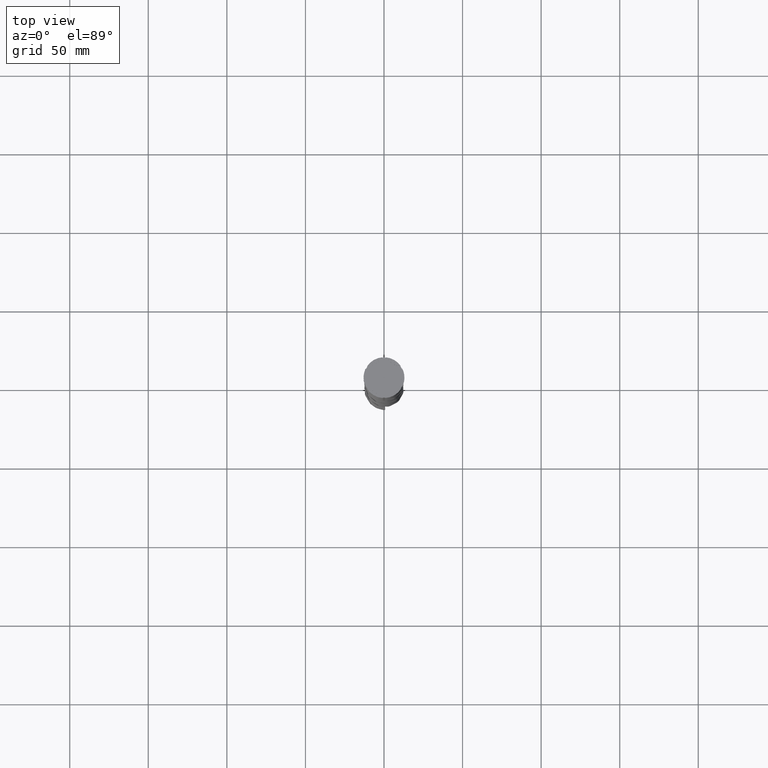
[diagram: clean part render]
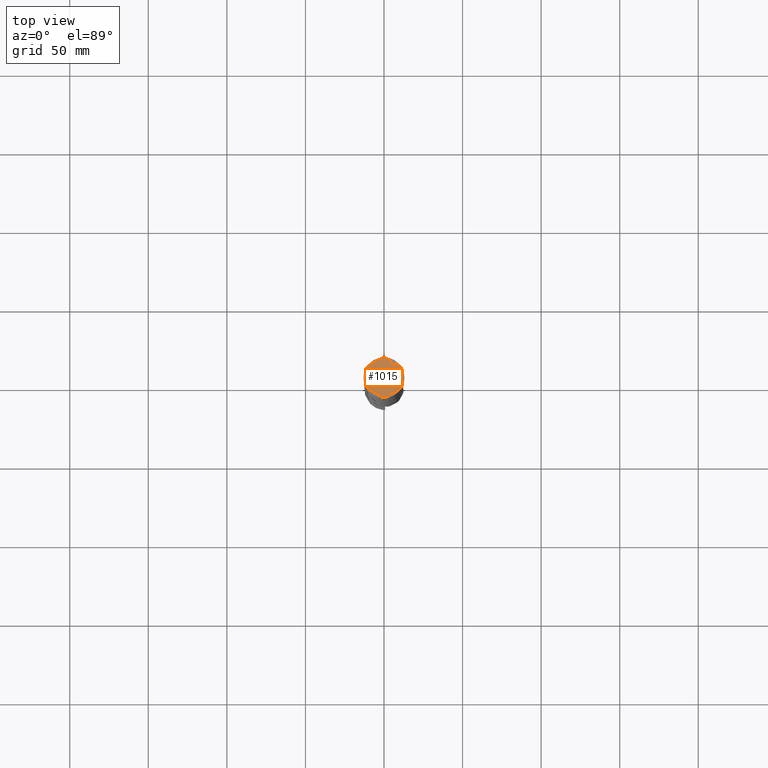
[diagram: same view with one face highlighted and labeled with its STEP entity id]
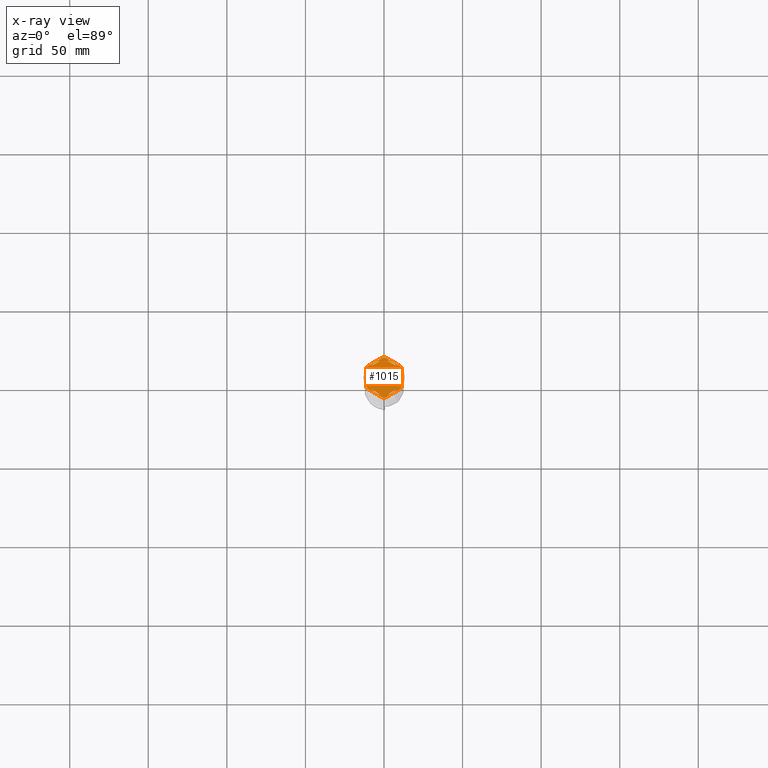
[diagram: x-ray of the same camera — body ghosted, the highlighted face saturated]
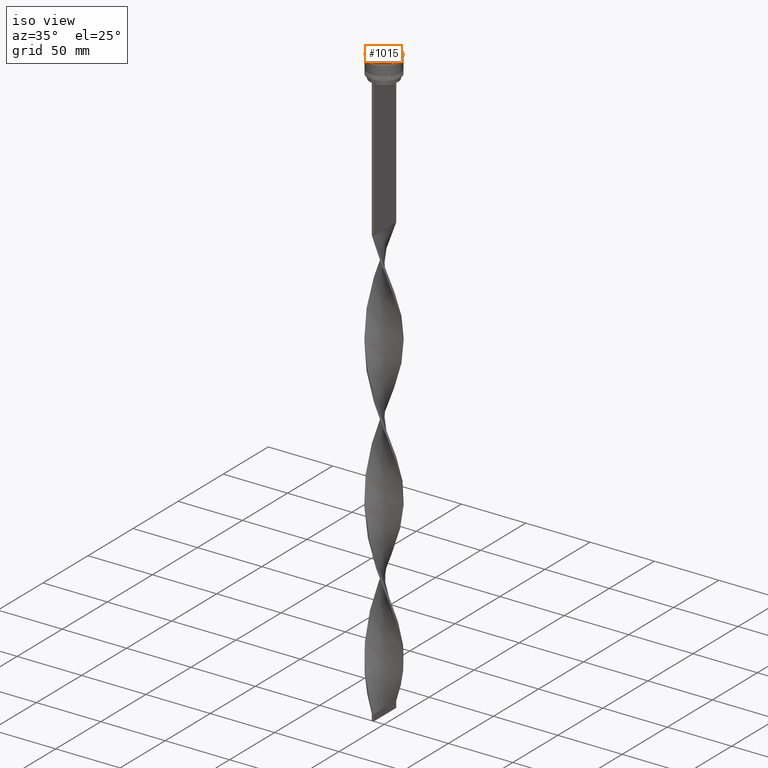
[diagram: same view with one face highlighted and labeled with its STEP entity id]
A machine part, top view. The second image highlights one B-rep face of the part: STEP entity #1015.
The next image is the same camera in x-ray: the body ghosted, the highlighted face saturated — about 0% of this face is hidden behind the body in this view.
A second angle (iso view) of the same face is appended — the face is thin or edge-on in the first view.
In plain terms, the highlighted planar face has unit normal (0, 0, 1).
Its self-contained STEP definition (entity closure, byte-faithful):
#3 = EDGE_CURVE ( 'NONE', #999, #2747, #1985, .T. ) ;
#16 = VERTEX_POINT ( 'NONE', #4385 ) ;
#31 = DIRECTION ( 'NONE',  ( 0.000000000000000000, 0.000000000000000000, 1.000000000000000000 ) ) ;
#42 = VECTOR ( 'NONE', #2098, 1000.000000000000114 ) ;
#44 = VERTEX_POINT ( 'NONE', #1360 ) ;
#48 = VECTOR ( 'NONE', #2152, 1000.000000000000000 ) ;
#72 = EDGE_CURVE ( 'NONE', #1540, #3100, #958, .T. ) ;
#73 = CARTESIAN_POINT ( 'NONE',  ( -11.50000000000000000, 5.388877434122992582, -1.000000000000000000 ) ) ;
#90 = VERTEX_POINT ( 'NONE', #3490 ) ;
#99 = DIRECTION ( 'NONE',  ( 1.000000000000000000, 0.000000000000000000, -0.000000000000000000 ) ) ;
#189 = ORIENTED_EDGE ( 'NONE', *, *, #502, .T. ) ;
#286 = CIRCLE ( 'NONE', #1870, 11.00000000000000000 ) ;
#322 = EDGE_CURVE ( 'NONE', #1761, #3811, #4470, .T. ) ;
#324 = ORIENTED_EDGE ( 'NONE', *, *, #4215, .T. ) ;
#337 = VERTEX_POINT ( 'NONE', #2493 ) ;
#347 = DIRECTION ( 'NONE',  ( 0.8660254037844385966, 0.5000000000000001110, -0.000000000000000000 ) ) ;
#357 = DIRECTION ( 'NONE',  ( 1.000000000000000000, 0.000000000000000000, 0.000000000000000000 ) ) ;
#373 = LINE ( 'NONE', #2902, #3270 ) ;
#386 = EDGE_CURVE ( 'NONE', #3811, #1689, #3659, .T. ) ;
#393 = DIRECTION ( 'NONE',  ( 1.000000000000000000, 0.000000000000000000, 0.000000000000000000 ) ) ;
#451 = DIRECTION ( 'NONE',  ( 0.000000000000000000, 0.000000000000000000, 1.000000000000000000 ) ) ;
#484 = CARTESIAN_POINT ( 'NONE',  ( 0.000000000000000000, 0.000000000000000000, -1.000000000000000000 ) ) ;
#500 = AXIS2_PLACEMENT_3D ( 'NONE', #856, #4457, #1537 ) ;
#501 = ORIENTED_EDGE ( 'NONE', *, *, #1970, .T. ) ;
#502 = EDGE_CURVE ( 'NONE', #2436, #598, #3015, .T. ) ;
#510 = CARTESIAN_POINT ( 'NONE',  ( 2.410545827099865868, -10.73262637081210791, -1.000000000000000888 ) ) ;
#559 = CARTESIAN_POINT ( 'NONE',  ( 0.000000000000000000, 0.000000000000000000, -1.000000000000000000 ) ) ;
#571 = CARTESIAN_POINT ( 'NONE',  ( 2.410545827099861871, 10.73262637081210791, -1.000000000000000888 ) ) ;
#591 = CARTESIAN_POINT ( 'NONE',  ( -1.083095244168783333, 12.65373086058254160, -1.000000000000000000 ) ) ;
#598 = VERTEX_POINT ( 'NONE', #2708 ) ;
#612 = CARTESIAN_POINT ( 'NONE',  ( 8.089454172900135021, -7.453907108661109504, -1.000000000000000888 ) ) ;
#682 = VERTEX_POINT ( 'NONE', #571 ) ;
#716 = ORIENTED_EDGE ( 'NONE', *, *, #1044, .F. ) ;
#743 = AXIS2_PLACEMENT_3D ( 'NONE', #4350, #3319, #3594 ) ;
#776 = LINE ( 'NONE', #3619, #3346 ) ;
#818 = EDGE_CURVE ( 'NONE', #1200, #90, #4474, .T. ) ;
#856 = CARTESIAN_POINT ( 'NONE',  ( 0.000000000000000000, 0.000000000000000000, -1.000000000000000000 ) ) ;
#877 = DIRECTION ( 'NONE',  ( -1.430775808321104180E-16, -1.000000000000000000, 0.000000000000000000 ) ) ;
#883 = CIRCLE ( 'NONE', #3487, 11.00000000000000000 ) ;
#897 = LINE ( 'NONE', #2001, #3730 ) ;
#903 = CARTESIAN_POINT ( 'NONE',  ( -10.49999999999999822, 6.062177826491068622, -1.000000000000000888 ) ) ;
#958 = CIRCLE ( 'NONE', #1184, 12.69999999999999929 ) ;
#969 = ORIENTED_EDGE ( 'NONE', *, *, #2282, .F. ) ;
#997 = CARTESIAN_POINT ( 'NONE',  ( 0.000000000000000000, 0.000000000000000000, -1.000000000000000000 ) ) ;
#999 = VERTEX_POINT ( 'NONE', #4020 ) ;
#1015 = ADVANCED_FACE ( 'NONE', ( #1256, #3312, #4109, #1986, #1940, #3402, #1629 ), #2993, .T. ) ;
#1035 = VECTOR ( 'NONE', #3414, 1000.000000000000000 ) ;
#1044 = EDGE_CURVE ( 'NONE', #1483, #2957, #2751, .T. ) ;
#1166 = LINE ( 'NONE', #2524, #48 ) ;
#1180 = ORIENTED_EDGE ( 'NONE', *, *, #3220, .F. ) ;
#1184 = AXIS2_PLACEMENT_3D ( 'NONE', #997, #2074, #2383 ) ;
#1200 = VERTEX_POINT ( 'NONE', #1475 ) ;
#1256 = FACE_BOUND ( 'NONE', #4406, .T. ) ;
#1280 = EDGE_CURVE ( 'NONE', #2642, #4238, #3199, .T. ) ;
#1299 = LINE ( 'NONE', #3439, #1035 ) ;
#1313 = DIRECTION ( 'NONE',  ( 1.000000000000000000, 0.000000000000000000, 0.000000000000000000 ) ) ;
#1333 = AXIS2_PLACEMENT_3D ( 'NONE', #3358, #3379, #99 ) ;
#1342 = EDGE_CURVE ( 'NONE', #2642, #3100, #3795, .T. ) ;
#1345 = ORIENTED_EDGE ( 'NONE', *, *, #3, .F. ) ;
#1360 = CARTESIAN_POINT ( 'NONE',  ( 8.089454172900138573, 7.453907108661105063, -1.000000000000000888 ) ) ;
#1367 = CARTESIAN_POINT ( 'NONE',  ( -11.50000000000000000, -5.388877434122992582, -1.000000000000000000 ) ) ;
#1381 = ORIENTED_EDGE ( 'NONE', *, *, #1881, .F. ) ;
#1412 = CIRCLE ( 'NONE', #2448, 12.69999999999999929 ) ;
#1415 = AXIS2_PLACEMENT_3D ( 'NONE', #1659, #3840, #3449 ) ;
#1442 = ORIENTED_EDGE ( 'NONE', *, *, #1887, .F. ) ;
#1456 = CARTESIAN_POINT ( 'NONE',  ( -10.41690475583121689, 7.264853426459546348, -1.000000000000000000 ) ) ;
#1472 = AXIS2_PLACEMENT_3D ( 'NONE', #1788, #3857, #1900 ) ;
#1475 = CARTESIAN_POINT ( 'NONE',  ( -2.410545827099867200, 10.73262637081210613, -1.000000000000000888 ) ) ;
#1483 = VERTEX_POINT ( 'NONE', #1697 ) ;
#1527 = LINE ( 'NONE', #2259, #1710 ) ;
#1537 = DIRECTION ( 'NONE',  ( 1.000000000000000000, 7.105427357601001859E-15, 0.000000000000000000 ) ) ;
#1540 = VERTEX_POINT ( 'NONE', #73 ) ;
#1551 = DIRECTION ( 'NONE',  ( 0.8660254037844387076, -0.4999999999999999445, 0.000000000000000000 ) ) ;
#1588 = ORIENTED_EDGE ( 'NONE', *, *, #3392, .F. ) ;
#1604 = CARTESIAN_POINT ( 'NONE',  ( 10.41690475583121867, -7.264853426459537467, -1.000000000000000000 ) ) ;
#1629 = FACE_OUTER_BOUND ( 'NONE', #3329, .T. ) ;
#1649 = EDGE_CURVE ( 'NONE', #3605, #2866, #1412, .T. ) ;
#1659 = CARTESIAN_POINT ( 'NONE',  ( 0.000000000000000000, 0.000000000000000000, -1.000000000000000000 ) ) ;
#1689 = VERTEX_POINT ( 'NONE', #4266 ) ;
#1697 = CARTESIAN_POINT ( 'NONE',  ( -10.41690475583121334, -7.264853426459548125, -1.000000000000000000 ) ) ;
#1710 = VECTOR ( 'NONE', #1551, 999.9999999999998863 ) ;
#1747 = VERTEX_POINT ( 'NONE', #4383 ) ;
#1761 = VERTEX_POINT ( 'NONE', #2988 ) ;
#1788 = CARTESIAN_POINT ( 'NONE',  ( 0.000000000000000000, 0.000000000000000000, -1.000000000000000000 ) ) ;
#1798 = CIRCLE ( 'NONE', #3804, 11.00000000000000000 ) ;
#1809 = CARTESIAN_POINT ( 'NONE',  ( 0.000000000000000000, 0.000000000000000000, -1.000000000000000000 ) ) ;
#1870 = AXIS2_PLACEMENT_3D ( 'NONE', #559, #3004, #1313 ) ;
#1873 = CARTESIAN_POINT ( 'NONE',  ( -10.49999999999999822, -3.278719262151000624, -1.000000000000000888 ) ) ;
#1881 = EDGE_CURVE ( 'NONE', #90, #1200, #776, .T. ) ;
#1885 = DIRECTION ( 'NONE',  ( 1.000000000000000000, 0.000000000000000000, 0.000000000000000000 ) ) ;
#1887 = EDGE_CURVE ( 'NONE', #2747, #999, #4242, .T. ) ;
#1888 = EDGE_LOOP ( 'NONE', ( #1442, #1345 ) ) ;
#1890 = CARTESIAN_POINT ( 'NONE',  ( 10.49999999999999289, -6.062177826491073063, -1.000000000000000888 ) ) ;
#1900 = DIRECTION ( 'NONE',  ( 1.000000000000000000, 0.000000000000000000, 0.000000000000000000 ) ) ;
#1940 = FACE_BOUND ( 'NONE', #3281, .T. ) ;
#1967 = ORIENTED_EDGE ( 'NONE', *, *, #1280, .F. ) ;
#1970 = EDGE_CURVE ( 'NONE', #1483, #2866, #2603, .T. ) ;
#1985 = LINE ( 'NONE', #1890, #2605 ) ;
#1986 = FACE_BOUND ( 'NONE', #2340, .T. ) ;
#2001 = CARTESIAN_POINT ( 'NONE',  ( -10.49999999999999822, -6.062177826491068622, -1.000000000000000888 ) ) ;
#2074 = DIRECTION ( 'NONE',  ( -0.000000000000000000, -0.000000000000000000, -1.000000000000000000 ) ) ;
#2081 = EDGE_CURVE ( 'NONE', #44, #682, #883, .T. ) ;
#2098 = DIRECTION ( 'NONE',  ( -0.8660254037844385966, -0.5000000000000001110, 0.000000000000000000 ) ) ;
#2106 = CARTESIAN_POINT ( 'NONE',  ( 1.083095244168774673, -12.65373086058253982, -1.000000000000000000 ) ) ;
#2109 = EDGE_CURVE ( 'NONE', #337, #4238, #1166, .T. ) ;
#2120 = CARTESIAN_POINT ( 'NONE',  ( 0.000000000000000000, 0.000000000000000000, -1.000000000000000000 ) ) ;
#2152 = DIRECTION ( 'NONE',  ( -0.8660254037844388186, 0.4999999999999997224, 0.000000000000000000 ) ) ;
#2168 = EDGE_CURVE ( 'NONE', #2660, #3381, #373, .T. ) ;
#2208 = ORIENTED_EDGE ( 'NONE', *, *, #2168, .F. ) ;
#2253 = DIRECTION ( 'NONE',  ( -0.8660254037844387076, -0.4999999999999999445, 0.000000000000000000 ) ) ;
#2259 = CARTESIAN_POINT ( 'NONE',  ( 10.49999999999999467, 6.062177826491072175, -1.000000000000000888 ) ) ;
#2282 = EDGE_CURVE ( 'NONE', #2436, #4540, #4401, .T. ) ;
#2287 = DIRECTION ( 'NONE',  ( 0.000000000000000000, 1.000000000000000000, 0.000000000000000000 ) ) ;
#2331 = DIRECTION ( 'NONE',  ( -0.8660254037844384856, 0.5000000000000002220, 0.000000000000000000 ) ) ;
#2340 = EDGE_LOOP ( 'NONE', ( #4595, #3522 ) ) ;
#2380 = CARTESIAN_POINT ( 'NONE',  ( 11.49999999999999822, -5.388877434122996135, -1.000000000000000000 ) ) ;
#2383 = DIRECTION ( 'NONE',  ( 1.000000000000000000, 0.000000000000000000, 0.000000000000000000 ) ) ;
#2436 = VERTEX_POINT ( 'NONE', #2380 ) ;
#2448 = AXIS2_PLACEMENT_3D ( 'NONE', #2938, #3194, #357 ) ;
#2449 = AXIS2_PLACEMENT_3D ( 'NONE', #2120, #4245, #2471 ) ;
#2471 = DIRECTION ( 'NONE',  ( 1.000000000000000000, 0.000000000000000000, 0.000000000000000000 ) ) ;
#2493 = CARTESIAN_POINT ( 'NONE',  ( 10.41690475583121156, 7.264853426459550789, -1.000000000000000000 ) ) ;
#2505 = DIRECTION ( 'NONE',  ( 0.000000000000000000, 0.000000000000000000, 1.000000000000000000 ) ) ;
#2509 = LINE ( 'NONE', #4337, #2546 ) ;
#2524 = CARTESIAN_POINT ( 'NONE',  ( 11.50000000000000000, 6.639528095680698350, -1.000000000000000000 ) ) ;
#2542 = ORIENTED_EDGE ( 'NONE', *, *, #1342, .T. ) ;
#2546 = VECTOR ( 'NONE', #3217, 1000.000000000000114 ) ;
#2569 = EDGE_CURVE ( 'NONE', #682, #44, #1527, .T. ) ;
#2603 = LINE ( 'NONE', #2980, #4544 ) ;
#2605 = VECTOR ( 'NONE', #877, 1000.000000000000000 ) ;
#2642 = VERTEX_POINT ( 'NONE', #591 ) ;
#2651 = EDGE_CURVE ( 'NONE', #1540, #2957, #1299, .T. ) ;
#2660 = VERTEX_POINT ( 'NONE', #612 ) ;
#2672 = DIRECTION ( 'NONE',  ( 0.8660254037844387076, -0.4999999999999997780, 0.000000000000000000 ) ) ;
#2708 = CARTESIAN_POINT ( 'NONE',  ( 11.49999999999999822, 5.388877434122992582, -1.000000000000000000 ) ) ;
#2747 = VERTEX_POINT ( 'NONE', #4448 ) ;
#2751 = CIRCLE ( 'NONE', #500, 12.69999999999999929 ) ;
#2763 = AXIS2_PLACEMENT_3D ( 'NONE', #484, #31, #393 ) ;
#2866 = VERTEX_POINT ( 'NONE', #3544 ) ;
#2885 = ORIENTED_EDGE ( 'NONE', *, *, #386, .F. ) ;
#2894 = VECTOR ( 'NONE', #2287, 1000.000000000000000 ) ;
#2895 = ORIENTED_EDGE ( 'NONE', *, *, #2569, .F. ) ;
#2902 = CARTESIAN_POINT ( 'NONE',  ( -2.602085213965210642E-15, -12.12435565298214080, -1.000000000000000888 ) ) ;
#2938 = CARTESIAN_POINT ( 'NONE',  ( 0.000000000000000000, 0.000000000000000000, -1.000000000000000000 ) ) ;
#2957 = VERTEX_POINT ( 'NONE', #1367 ) ;
#2975 = CARTESIAN_POINT ( 'NONE',  ( 0.000000000000000000, 0.000000000000000000, -1.000000000000000000 ) ) ;
#2980 = CARTESIAN_POINT ( 'NONE',  ( -11.50000000000000000, -6.639528095680696573, -1.000000000000000000 ) ) ;
#2988 = CARTESIAN_POINT ( 'NONE',  ( -11.00000000000000000, 0.000000000000000000, -1.000000000000000000 ) ) ;
#2990 = CIRCLE ( 'NONE', #2763, 11.00000000000000000 ) ;
#2993 = PLANE ( 'NONE',  #1333 ) ;
#3004 = DIRECTION ( 'NONE',  ( 0.000000000000000000, 0.000000000000000000, 1.000000000000000000 ) ) ;
#3015 = LINE ( 'NONE', #3311, #4162 ) ;
#3100 = VERTEX_POINT ( 'NONE', #1456 ) ;
#3113 = EDGE_CURVE ( 'NONE', #16, #1747, #2990, .T. ) ;
#3188 = DIRECTION ( 'NONE',  ( -0.000000000000000000, -0.000000000000000000, -1.000000000000000000 ) ) ;
#3194 = DIRECTION ( 'NONE',  ( -0.000000000000000000, -0.000000000000000000, -1.000000000000000000 ) ) ;
#3199 = CIRCLE ( 'NONE', #4088, 12.69999999999999929 ) ;
#3201 = AXIS2_PLACEMENT_3D ( 'NONE', #1809, #2505, #3233 ) ;
#3217 = DIRECTION ( 'NONE',  ( 0.8660254037844385966, 0.4999999999999999445, 0.000000000000000000 ) ) ;
#3220 = EDGE_CURVE ( 'NONE', #337, #598, #4176, .T. ) ;
#3233 = DIRECTION ( 'NONE',  ( 1.000000000000000000, 0.000000000000000000, 0.000000000000000000 ) ) ;
#3260 = ORIENTED_EDGE ( 'NONE', *, *, #2109, .T. ) ;
#3265 = ORIENTED_EDGE ( 'NONE', *, *, #322, .F. ) ;
#3270 = VECTOR ( 'NONE', #2253, 999.9999999999998863 ) ;
#3281 = EDGE_LOOP ( 'NONE', ( #3599, #2885, #3265 ) ) ;
#3292 = ORIENTED_EDGE ( 'NONE', *, *, #2651, .T. ) ;
#3310 = ORIENTED_EDGE ( 'NONE', *, *, #72, .F. ) ;
#3311 = CARTESIAN_POINT ( 'NONE',  ( 11.49999999999999822, -6.639528095680694797, -1.000000000000000000 ) ) ;
#3312 = FACE_BOUND ( 'NONE', #1888, .T. ) ;
#3318 = DIRECTION ( 'NONE',  ( 1.000000000000000000, 0.000000000000000000, 0.000000000000000000 ) ) ;
#3319 = DIRECTION ( 'NONE',  ( -0.000000000000000000, -0.000000000000000000, -1.000000000000000000 ) ) ;
#3329 = EDGE_LOOP ( 'NONE', ( #189, #1180, #3260, #1967, #2542, #3310, #3292, #716, #501, #3785, #324, #969 ) ) ;
#3346 = VECTOR ( 'NONE', #347, 1000.000000000000000 ) ;
#3358 = CARTESIAN_POINT ( 'NONE',  ( 0.000000000000000000, 0.000000000000000000, -1.000000000000000000 ) ) ;
#3379 = DIRECTION ( 'NONE',  ( 0.000000000000000000, 0.000000000000000000, 1.000000000000000000 ) ) ;
#3381 = VERTEX_POINT ( 'NONE', #510 ) ;
#3392 = EDGE_CURVE ( 'NONE', #3381, #2660, #286, .T. ) ;
#3402 = FACE_BOUND ( 'NONE', #4356, .T. ) ;
#3414 = DIRECTION ( 'NONE',  ( 0.000000000000000000, -1.000000000000000000, 0.000000000000000000 ) ) ;
#3439 = CARTESIAN_POINT ( 'NONE',  ( -11.50000000000000000, 6.639528095680691244, -1.000000000000000000 ) ) ;
#3449 = DIRECTION ( 'NONE',  ( 1.000000000000000000, 0.000000000000000000, 0.000000000000000000 ) ) ;
#3487 = AXIS2_PLACEMENT_3D ( 'NONE', #2975, #4324, #3318 ) ;
#3490 = CARTESIAN_POINT ( 'NONE',  ( -8.089454172900135021, 7.453907108661106840, -1.000000000000000888 ) ) ;
#3522 = ORIENTED_EDGE ( 'NONE', *, *, #4419, .F. ) ;
#3544 = CARTESIAN_POINT ( 'NONE',  ( -1.083095244168779780, -12.65373086058253982, -1.000000000000000000 ) ) ;
#3581 = CARTESIAN_POINT ( 'NONE',  ( 0.000000000000000000, 0.000000000000000000, -1.000000000000000000 ) ) ;
#3594 = DIRECTION ( 'NONE',  ( 1.000000000000000000, -1.776356839400250465E-14, 0.000000000000000000 ) ) ;
#3599 = ORIENTED_EDGE ( 'NONE', *, *, #4335, .F. ) ;
#3605 = VERTEX_POINT ( 'NONE', #2106 ) ;
#3619 = CARTESIAN_POINT ( 'NONE',  ( -1.734723475976807094E-15, 12.12435565298214080, -1.000000000000000888 ) ) ;
#3659 = LINE ( 'NONE', #903, #2894 ) ;
#3669 = DIRECTION ( 'NONE',  ( 1.000000000000000000, 1.243449787580175325E-14, 0.000000000000000000 ) ) ;
#3730 = VECTOR ( 'NONE', #2331, 1000.000000000000000 ) ;
#3785 = ORIENTED_EDGE ( 'NONE', *, *, #1649, .F. ) ;
#3795 = LINE ( 'NONE', #4241, #42 ) ;
#3804 = AXIS2_PLACEMENT_3D ( 'NONE', #3581, #451, #1885 ) ;
#3811 = VERTEX_POINT ( 'NONE', #1873 ) ;
#3840 = DIRECTION ( 'NONE',  ( -0.000000000000000000, -0.000000000000000000, -1.000000000000000000 ) ) ;
#3857 = DIRECTION ( 'NONE',  ( 0.000000000000000000, 0.000000000000000000, 1.000000000000000000 ) ) ;
#3979 = ORIENTED_EDGE ( 'NONE', *, *, #2081, .F. ) ;
#4020 = CARTESIAN_POINT ( 'NONE',  ( 10.49999999999999467, 3.278719262151012170, -1.000000000000000888 ) ) ;
#4083 = ORIENTED_EDGE ( 'NONE', *, *, #818, .F. ) ;
#4088 = AXIS2_PLACEMENT_3D ( 'NONE', #4281, #3188, #3669 ) ;
#4109 = FACE_BOUND ( 'NONE', #4427, .T. ) ;
#4162 = VECTOR ( 'NONE', #4365, 1000.000000000000000 ) ;
#4176 = CIRCLE ( 'NONE', #743, 12.69999999999999929 ) ;
#4215 = EDGE_CURVE ( 'NONE', #3605, #4540, #2509, .T. ) ;
#4238 = VERTEX_POINT ( 'NONE', #4284 ) ;
#4241 = CARTESIAN_POINT ( 'NONE',  ( 0.000000000000000000, 13.27905619136138959, -1.000000000000000000 ) ) ;
#4242 = CIRCLE ( 'NONE', #3201, 11.00000000000000000 ) ;
#4245 = DIRECTION ( 'NONE',  ( 0.000000000000000000, 0.000000000000000000, 1.000000000000000000 ) ) ;
#4266 = CARTESIAN_POINT ( 'NONE',  ( -10.49999999999999822, 3.278719262151000624, -1.000000000000000888 ) ) ;
#4281 = CARTESIAN_POINT ( 'NONE',  ( 0.000000000000000000, 0.000000000000000000, -1.000000000000000000 ) ) ;
#4284 = CARTESIAN_POINT ( 'NONE',  ( 1.083095244168781557, 12.65373086058254160, -1.000000000000000000 ) ) ;
#4324 = DIRECTION ( 'NONE',  ( 0.000000000000000000, 0.000000000000000000, 1.000000000000000000 ) ) ;
#4335 = EDGE_CURVE ( 'NONE', #1689, #1761, #1798, .T. ) ;
#4337 = CARTESIAN_POINT ( 'NONE',  ( 5.612359739892467248E-18, -13.27905619136138959, -1.000000000000000000 ) ) ;
#4350 = CARTESIAN_POINT ( 'NONE',  ( 0.000000000000000000, 0.000000000000000000, -1.000000000000000000 ) ) ;
#4356 = EDGE_LOOP ( 'NONE', ( #4083, #1381 ) ) ;
#4365 = DIRECTION ( 'NONE',  ( 1.306360520641008153E-16, 1.000000000000000000, 0.000000000000000000 ) ) ;
#4383 = CARTESIAN_POINT ( 'NONE',  ( -2.410545827099876082, -10.73262637081210435, -1.000000000000000888 ) ) ;
#4385 = CARTESIAN_POINT ( 'NONE',  ( -8.089454172900133244, -7.453907108661111280, -1.000000000000000888 ) ) ;
#4401 = CIRCLE ( 'NONE', #1415, 12.69999999999999929 ) ;
#4406 = EDGE_LOOP ( 'NONE', ( #3979, #2895 ) ) ;
#4419 = EDGE_CURVE ( 'NONE', #1747, #16, #897, .T. ) ;
#4427 = EDGE_LOOP ( 'NONE', ( #1588, #2208 ) ) ;
#4448 = CARTESIAN_POINT ( 'NONE',  ( 10.49999999999999467, -3.278719262151014835, -1.000000000000000888 ) ) ;
#4457 = DIRECTION ( 'NONE',  ( -0.000000000000000000, -0.000000000000000000, -1.000000000000000000 ) ) ;
#4470 = CIRCLE ( 'NONE', #2449, 11.00000000000000000 ) ;
#4474 = CIRCLE ( 'NONE', #1472, 11.00000000000000000 ) ;
#4540 = VERTEX_POINT ( 'NONE', #1604 ) ;
#4544 = VECTOR ( 'NONE', #2672, 1000.000000000000227 ) ;
#4595 = ORIENTED_EDGE ( 'NONE', *, *, #3113, .F. ) ;